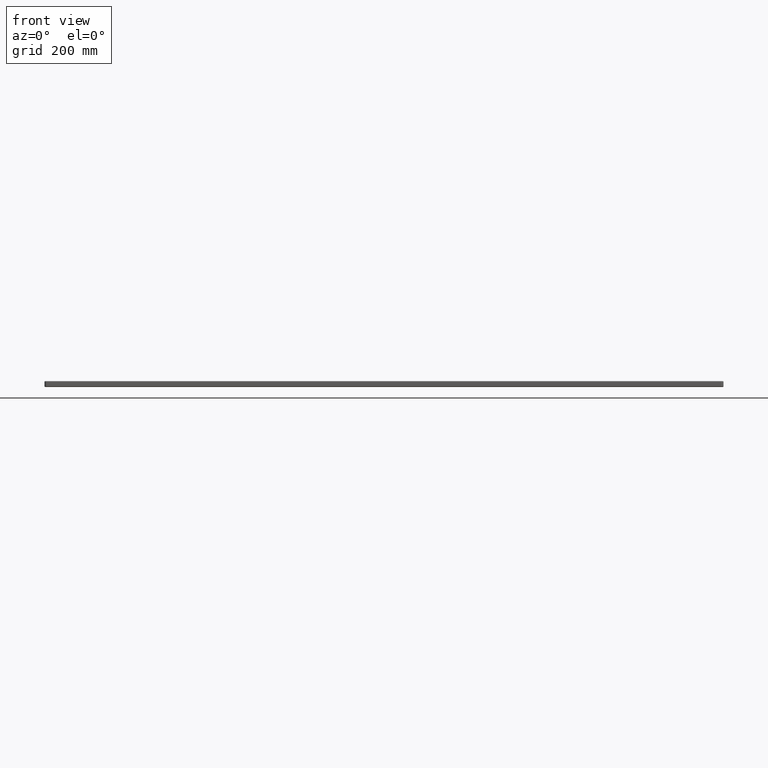
[diagram: clean part render]
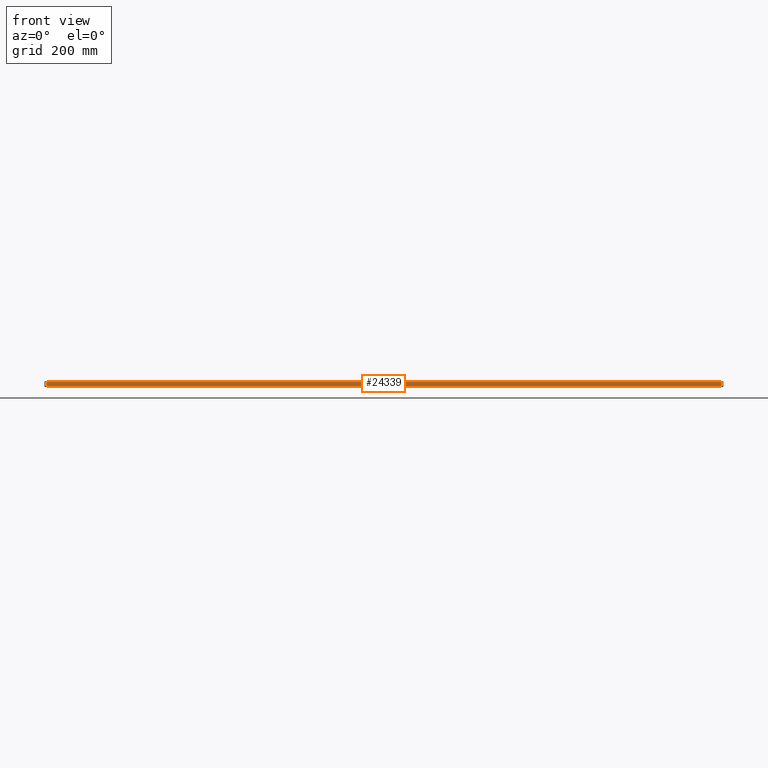
[diagram: same view with one face highlighted and labeled with its STEP entity id]
A machine part, front view. The second image highlights one B-rep face of the part: STEP entity #24339.
In plain terms, the highlighted planar face has unit normal (0, -1, 0).
Its self-contained STEP definition (entity closure, byte-faithful):
#1321 = AXIS2_PLACEMENT_3D ( 'NONE', #65228, #2667, #41570 ) ;
#2667 = DIRECTION ( 'NONE',  ( 0.0000000000000000000, -1.000000000000000000, 0.0000000000000000000 ) ) ;
#3775 = LINE ( 'NONE', #34881, #88683 ) ;
#4955 = DIRECTION ( 'NONE',  ( -0.0000000000000000000, -0.0000000000000000000, -1.000000000000000000 ) ) ;
#9096 = VERTEX_POINT ( 'NONE', #43035 ) ;
#9969 = EDGE_CURVE ( 'NONE', #30620, #9096, #100815, .T. ) ;
#21685 = ORIENTED_EDGE ( 'NONE', *, *, #51072, .T. ) ;
#21759 = EDGE_CURVE ( 'NONE', #96283, #30620, #40774, .T. ) ;
#24339 = ADVANCED_FACE ( 'NONE', ( #69836 ), #88916, .T. ) ;
#26292 = DIRECTION ( 'NONE',  ( -1.000000000000000000, -0.0000000000000000000, 0.0000000000000000000 ) ) ;
#30620 = VERTEX_POINT ( 'NONE', #39187 ) ;
#34881 = CARTESIAN_POINT ( 'NONE',  ( 4.999999999999999100, 0.0000000000000000000, -2.000000000000000000 ) ) ;
#39187 = CARTESIAN_POINT ( 'NONE',  ( 1494.999999999999800, 0.0000000000000000000, -11.00000000000000000 ) ) ;
#40774 = LINE ( 'NONE', #95959, #86298 ) ;
#41570 = DIRECTION ( 'NONE',  ( 0.0000000000000000000, -0.0000000000000000000, -1.000000000000000000 ) ) ;
#43035 = CARTESIAN_POINT ( 'NONE',  ( 1494.999999999999800, 0.0000000000000000000, -2.000000000000000000 ) ) ;
#48857 = CARTESIAN_POINT ( 'NONE',  ( 1494.999999999999800, 0.0000000000000000000, -13.00000000000000000 ) ) ;
#51053 = CARTESIAN_POINT ( 'NONE',  ( 4.999999999999999100, 0.0000000000000000000, -13.00000000000000000 ) ) ;
#51072 = EDGE_CURVE ( 'NONE', #83994, #96283, #72073, .T. ) ;
#51149 = VECTOR ( 'NONE', #4955, 1000.000000000000000 ) ;
#54357 = DIRECTION ( 'NONE',  ( 1.000000000000000000, 0.0000000000000000000, 0.0000000000000000000 ) ) ;
#58304 = ORIENTED_EDGE ( 'NONE', *, *, #9969, .T. ) ;
#63909 = VECTOR ( 'NONE', #71931, 1000.000000000000000 ) ;
#65228 = CARTESIAN_POINT ( 'NONE',  ( 0.0000000000000000000, 0.0000000000000000000, -13.00000000000000000 ) ) ;
#69836 = FACE_OUTER_BOUND ( 'NONE', #88017, .T. ) ;
#71931 = DIRECTION ( 'NONE',  ( 0.0000000000000000000, 0.0000000000000000000, 1.000000000000000000 ) ) ;
#72073 = LINE ( 'NONE', #51053, #51149 ) ;
#81048 = CARTESIAN_POINT ( 'NONE',  ( 4.999999999999999100, 0.0000000000000000000, -11.00000000000000000 ) ) ;
#82101 = EDGE_CURVE ( 'NONE', #9096, #83994, #3775, .T. ) ;
#82502 = CARTESIAN_POINT ( 'NONE',  ( 4.999999999999999100, 0.0000000000000000000, -2.000000000000000000 ) ) ;
#83994 = VERTEX_POINT ( 'NONE', #82502 ) ;
#86298 = VECTOR ( 'NONE', #54357, 1000.000000000000000 ) ;
#87586 = ORIENTED_EDGE ( 'NONE', *, *, #21759, .T. ) ;
#88017 = EDGE_LOOP ( 'NONE', ( #21685, #87586, #58304, #95462 ) ) ;
#88683 = VECTOR ( 'NONE', #26292, 1000.000000000000000 ) ;
#88916 = PLANE ( 'NONE',  #1321 ) ;
#95462 = ORIENTED_EDGE ( 'NONE', *, *, #82101, .T. ) ;
#95959 = CARTESIAN_POINT ( 'NONE',  ( 0.0000000000000000000, 0.0000000000000000000, -11.00000000000000000 ) ) ;
#96283 = VERTEX_POINT ( 'NONE', #81048 ) ;
#100815 = LINE ( 'NONE', #48857, #63909 ) ;